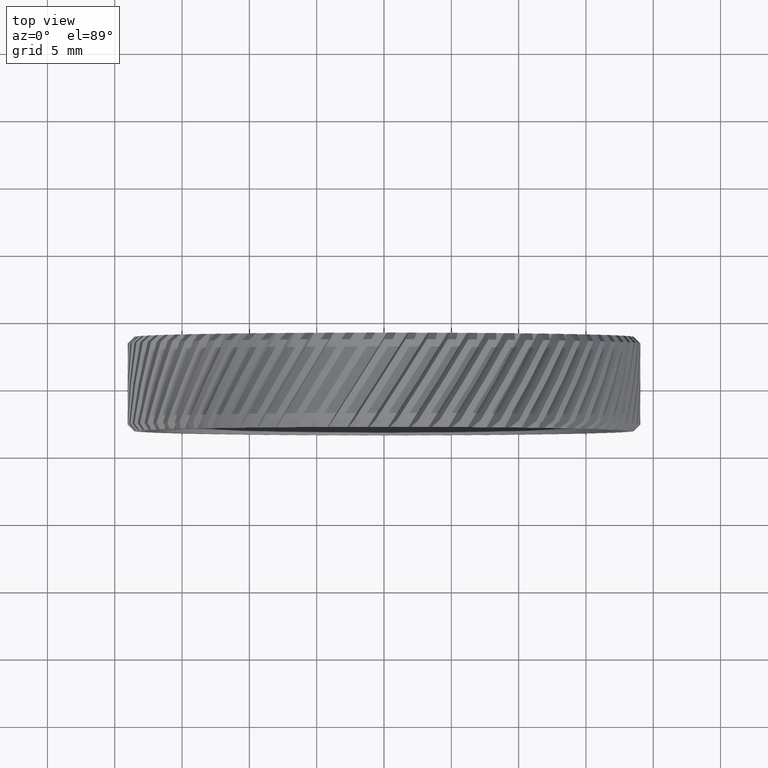
[diagram: clean part render]
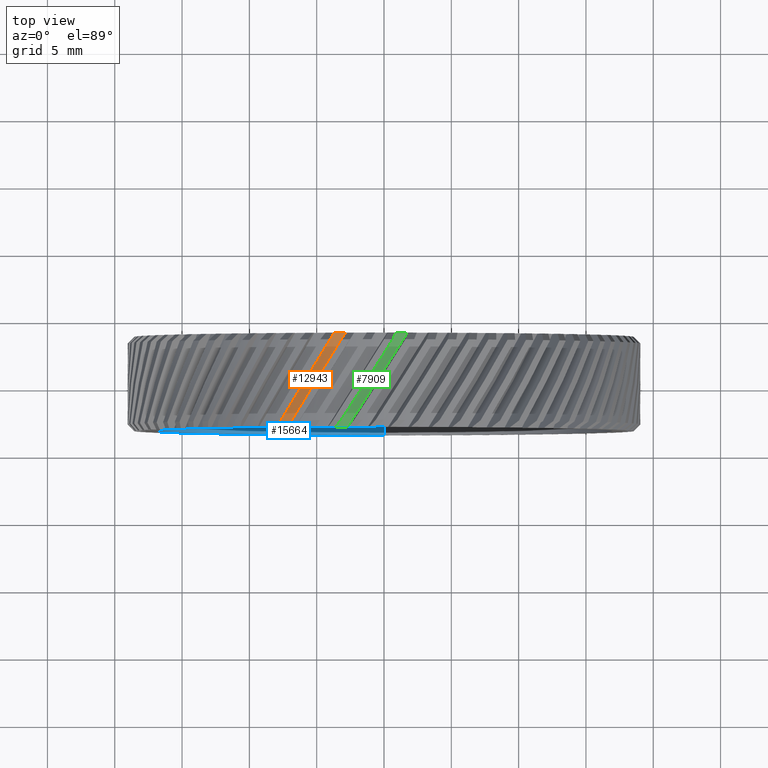
[diagram: same view with three faces highlighted in distinct colors, each labeled with its STEP entity id]
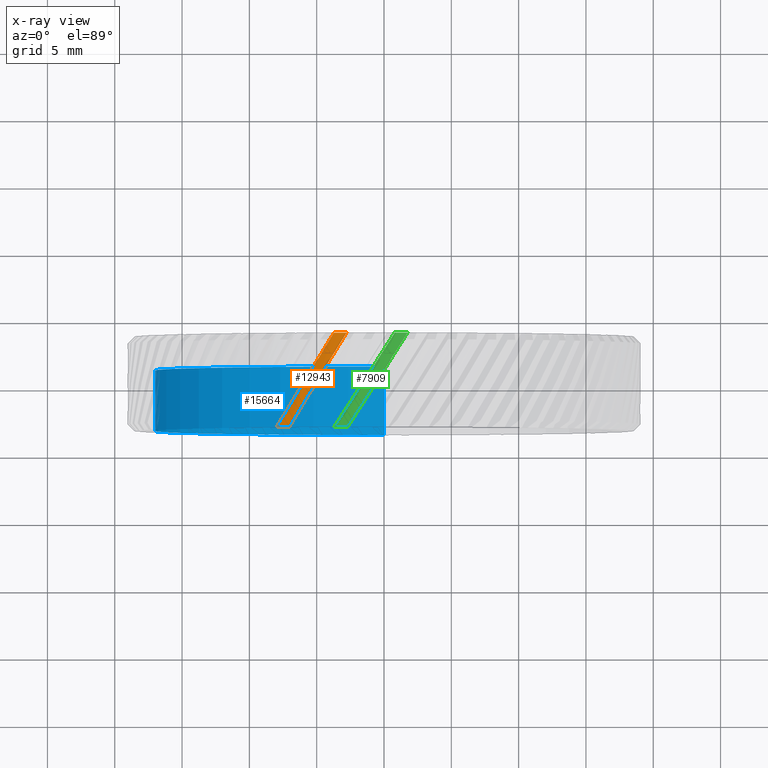
[diagram: x-ray of the same camera — body ghosted, the three highlighted faces saturated]
A machine part, top view with three faces highlighted in distinct colors.
The next image is the same camera in x-ray (body ghosted, the three faces saturated) — at least one of them is partly hidden behind the body in this view.
Their STEP definitions:

[orange] entity #12943 — the highlighted cylindrical surface (partial cylindrical patch) has radius 18.05 mm, axis along (0, 1, 0).
#293 = CARTESIAN_POINT ( 'NONE',  ( -7.975243422392667400, -13.33088448223191400, 16.19252890544224900 ) ) ;
#976 = EDGE_CURVE ( 'NONE', #13316, #4365, #5979, .T. ) ;
#1283 = CARTESIAN_POINT ( 'NONE',  ( -3.711440963924498100, -6.330884482231919500, 17.66430598612079500 ) ) ;
#2137 =( BOUNDED_CURVE ( )  B_SPLINE_CURVE ( 3, ( #4236, #2842, #15421, #293 ),
 .UNSPECIFIED., .F., .F. ) 
 B_SPLINE_CURVE_WITH_KNOTS ( ( 4, 4 ),
 ( 1.694117723285956100, 1.944671170535411400 ),
 .UNSPECIFIED. ) 
 CURVE ( )  GEOMETRIC_REPRESENTATION_ITEM ( )  RATIONAL_B_SPLINE_CURVE ( ( 1.000000000000000000, 0.9947754191975924900, 0.9947754191975924900, 1.000000000000000000 ) ) 
 REPRESENTATION_ITEM ( '' )  );
#2759 = CARTESIAN_POINT ( 'NONE',  ( -7.063796452055444600, -13.33088448223191600, 16.61039673469388200 ) ) ;
#2842 = CARTESIAN_POINT ( 'NONE',  ( -5.190597300275997300, -8.732488464476686500, 17.35352098142847400 ) ) ;
#3801 = ORIENTED_EDGE ( 'NONE', *, *, #13690, .T. ) ;
#4155 = CARTESIAN_POINT ( 'NONE',  ( 0.0000000000000000000, 46.02073106022621100, 0.0000000000000000000 ) ) ;
#4236 = CARTESIAN_POINT ( 'NONE',  ( -3.711440963924498100, -6.330884482231919500, 17.66430598612079500 ) ) ;
#4365 = VERTEX_POINT ( 'NONE', #4870 ) ;
#4834 = EDGE_CURVE ( 'NONE', #13316, #9555, #14451, .T. ) ;
#4870 = CARTESIAN_POINT ( 'NONE',  ( -7.975243422392667400, -13.33088448223191400, 16.19252890544224900 ) ) ;
#5405 = CARTESIAN_POINT ( 'NONE',  ( -5.689898128896326000, -11.06057732360097900, 17.19466562698022500 ) ) ;
#5528 = EDGE_LOOP ( 'NONE', ( #13489, #5746, #3801, #14037 ) ) ;
#5746 = ORIENTED_EDGE ( 'NONE', *, *, #8791, .F. ) ;
#5979 = CIRCLE ( 'NONE', #9664, 18.05000000000000800 ) ;
#6108 = CARTESIAN_POINT ( 'NONE',  ( 0.0000000000000000000, -6.330884482231915900, 0.0000000000000000000 ) ) ;
#7388 = FACE_OUTER_BOUND ( 'NONE', #5528, .T. ) ;
#8791 = EDGE_CURVE ( 'NONE', #13665, #9555, #12070, .T. ) ;
#9412 = DIRECTION ( 'NONE',  ( -0.08367784333230167400, 0.0000000000000000000, 0.9964928592495054800 ) ) ;
#9555 = VERTEX_POINT ( 'NONE', #15788 ) ;
#9664 = AXIS2_PLACEMENT_3D ( 'NONE', #10258, #14111, #12753 ) ;
#10258 = CARTESIAN_POINT ( 'NONE',  ( 0.0000000000000000000, -13.33088448223191600, 0.0000000000000000000 ) ) ;
#11080 = DIRECTION ( 'NONE',  ( 0.0000000000000000000, 1.000000000000000000, 0.0000000000000000000 ) ) ;
#11710 = CYLINDRICAL_SURFACE ( 'NONE', #15273, 18.05000000000000800 ) ;
#11770 = AXIS2_PLACEMENT_3D ( 'NONE', #6108, #15002, #13534 ) ;
#11883 = CARTESIAN_POINT ( 'NONE',  ( -7.063796452055444600, -13.33088448223191600, 16.61039673469388200 ) ) ;
#12070 = CIRCLE ( 'NONE', #11770, 18.05000000000000800 ) ;
#12753 = DIRECTION ( 'NONE',  ( -0.08367784333230167400, 0.0000000000000000000, 0.9964928592495054800 ) ) ;
#12895 = CARTESIAN_POINT ( 'NONE',  ( -4.254386344343810600, -8.715286743520588100, 17.60487613060467600 ) ) ;
#12943 = ADVANCED_FACE ( 'NONE', ( #7388 ), #11710, .T. ) ;
#13316 = VERTEX_POINT ( 'NONE', #11883 ) ;
#13489 = ORIENTED_EDGE ( 'NONE', *, *, #4834, .T. ) ;
#13534 = DIRECTION ( 'NONE',  ( 0.08367784333230167400, 0.0000000000000000000, -0.9964928592495054800 ) ) ;
#13665 = VERTEX_POINT ( 'NONE', #1283 ) ;
#13690 = EDGE_CURVE ( 'NONE', #13665, #4365, #2137, .T. ) ;
#14037 = ORIENTED_EDGE ( 'NONE', *, *, #976, .F. ) ;
#14111 = DIRECTION ( 'NONE',  ( -0.0000000000000000000, -1.000000000000000000, -0.0000000000000000000 ) ) ;
#14146 = CARTESIAN_POINT ( 'NONE',  ( -2.779217569926837800, -6.330884482231915900, 17.83475398481880300 ) ) ;
#14451 =( BOUNDED_CURVE ( )  B_SPLINE_CURVE ( 3, ( #2759, #5405, #12895, #14146 ),
 .UNSPECIFIED., .F., .F. ) 
 B_SPLINE_CURVE_WITH_KNOTS ( ( 4, 4 ),
 ( 4.394070920343705400, 4.641576534375216700 ),
 .UNSPECIFIED. ) 
 CURVE ( )  GEOMETRIC_REPRESENTATION_ITEM ( )  RATIONAL_B_SPLINE_CURVE ( ( 1.000000000000000000, 0.9949015926433100200, 0.9949015926433100200, 1.000000000000000000 ) ) 
 REPRESENTATION_ITEM ( '' )  );
#15002 = DIRECTION ( 'NONE',  ( -0.0000000000000000000, 1.000000000000000000, -0.0000000000000000000 ) ) ;
#15273 = AXIS2_PLACEMENT_3D ( 'NONE', #4155, #11080, #9412 ) ;
#15421 = CARTESIAN_POINT ( 'NONE',  ( -6.619329312273718500, -11.07807651209395200, 16.86035202011465700 ) ) ;
#15788 = CARTESIAN_POINT ( 'NONE',  ( -2.779217569926837800, -6.330884482231915900, 17.83475398481880300 ) ) ;

[blue] entity #15664 — the highlighted cylindrical surface (partial cylindrical patch) has radius 17 mm, axis along (-0, 1, -0).
#882 = DIRECTION ( 'NONE',  ( 0.0000000000000000000, 0.0000000000000000000, 1.000000000000000000 ) ) ;
#943 = ORIENTED_EDGE ( 'NONE', *, *, #10367, .F. ) ;
#960 = AXIS2_PLACEMENT_3D ( 'NONE', #7024, #8296, #882 ) ;
#1374 = LINE ( 'NONE', #4353, #13560 ) ;
#1409 = LINE ( 'NONE', #14016, #6321 ) ;
#1491 = DIRECTION ( 'NONE',  ( 0.0000000000000000000, 0.0000000000000000000, 1.000000000000000000 ) ) ;
#1683 = VERTEX_POINT ( 'NONE', #2905 ) ;
#1707 = VERTEX_POINT ( 'NONE', #11499 ) ;
#1984 = DIRECTION ( 'NONE',  ( -0.0000000000000000000, 1.000000000000000000, -0.0000000000000000000 ) ) ;
#2312 = CARTESIAN_POINT ( 'NONE',  ( 2.081899558550501500E-015, -13.33088448223191600, -17.00000000000000700 ) ) ;
#2905 = CARTESIAN_POINT ( 'NONE',  ( 0.0000000000000000000, -13.33088448223191600, 17.00000000000000700 ) ) ;
#2940 = EDGE_CURVE ( 'NONE', #1707, #9491, #8086, .T. ) ;
#2957 = CIRCLE ( 'NONE', #8535, 17.00000000000000700 ) ;
#3507 = DIRECTION ( 'NONE',  ( 0.0000000000000000000, 0.0000000000000000000, 1.000000000000000000 ) ) ;
#3898 = EDGE_CURVE ( 'NONE', #1683, #9491, #1374, .T. ) ;
#4353 = CARTESIAN_POINT ( 'NONE',  ( 0.0000000000000000000, 46.02073106022621100, 17.00000000000000700 ) ) ;
#4663 = DIRECTION ( 'NONE',  ( -0.0000000000000000000, 1.000000000000000000, -0.0000000000000000000 ) ) ;
#5330 = EDGE_LOOP ( 'NONE', ( #943, #12119, #13235, #13691 ) ) ;
#5594 = CARTESIAN_POINT ( 'NONE',  ( 0.0000000000000000000, 46.02073106022621100, 0.0000000000000000000 ) ) ;
#6321 = VECTOR ( 'NONE', #11397, 1000.000000000000000 ) ;
#7024 = CARTESIAN_POINT ( 'NONE',  ( 0.0000000000000000000, -8.830884482231917700, 0.0000000000000000000 ) ) ;
#7920 = FACE_OUTER_BOUND ( 'NONE', #5330, .T. ) ;
#8086 = CIRCLE ( 'NONE', #960, 17.00000000000000700 ) ;
#8296 = DIRECTION ( 'NONE',  ( -0.0000000000000000000, 1.000000000000000000, -0.0000000000000000000 ) ) ;
#8535 = AXIS2_PLACEMENT_3D ( 'NONE', #15415, #12919, #1491 ) ;
#9235 = AXIS2_PLACEMENT_3D ( 'NONE', #5594, #4663, #3507 ) ;
#9491 = VERTEX_POINT ( 'NONE', #13067 ) ;
#10353 = EDGE_CURVE ( 'NONE', #14438, #1707, #1409, .T. ) ;
#10367 = EDGE_CURVE ( 'NONE', #14438, #1683, #2957, .T. ) ;
#11397 = DIRECTION ( 'NONE',  ( -0.0000000000000000000, 1.000000000000000000, -0.0000000000000000000 ) ) ;
#11499 = CARTESIAN_POINT ( 'NONE',  ( 2.081899558550501500E-015, -8.830884482231917700, -17.00000000000000700 ) ) ;
#12119 = ORIENTED_EDGE ( 'NONE', *, *, #10353, .T. ) ;
#12919 = DIRECTION ( 'NONE',  ( -0.0000000000000000000, 1.000000000000000000, -0.0000000000000000000 ) ) ;
#13067 = CARTESIAN_POINT ( 'NONE',  ( 0.0000000000000000000, -8.830884482231917700, 17.00000000000000700 ) ) ;
#13235 = ORIENTED_EDGE ( 'NONE', *, *, #2940, .T. ) ;
#13560 = VECTOR ( 'NONE', #1984, 1000.000000000000000 ) ;
#13635 = CYLINDRICAL_SURFACE ( 'NONE', #9235, 17.00000000000000700 ) ;
#13691 = ORIENTED_EDGE ( 'NONE', *, *, #3898, .F. ) ;
#14016 = CARTESIAN_POINT ( 'NONE',  ( 2.081899558550501500E-015, 46.02073106022621100, -17.00000000000000700 ) ) ;
#14438 = VERTEX_POINT ( 'NONE', #2312 ) ;
#15415 = CARTESIAN_POINT ( 'NONE',  ( 0.0000000000000000000, -13.33088448223191600, 0.0000000000000000000 ) ) ;
#15664 = ADVANCED_FACE ( 'NONE', ( #7920 ), #13635, .F. ) ;

[green] entity #7909 — the highlighted cylindrical surface (partial cylindrical patch) has radius 18.05 mm, axis along (0, 1, 0).
#1286 = CYLINDRICAL_SURFACE ( 'NONE', #14605, 18.05000000000000800 ) ;
#1802 = AXIS2_PLACEMENT_3D ( 'NONE', #4244, #3075, #4184 ) ;
#2510 = CIRCLE ( 'NONE', #10346, 18.05000000000000800 ) ;
#2564 = CARTESIAN_POINT ( 'NONE',  ( 1.743419616753320900, -6.330884482231915900, 17.96560569643894900 ) ) ;
#2829 = DIRECTION ( 'NONE',  ( 0.1667687467161026200, 0.0000000000000000000, 0.9859960370705047600 ) ) ;
#3075 = DIRECTION ( 'NONE',  ( -0.0000000000000000000, 1.000000000000000000, -0.0000000000000000000 ) ) ;
#3211 = EDGE_CURVE ( 'NONE', #5324, #14087, #14300, .T. ) ;
#3318 = CARTESIAN_POINT ( 'NONE',  ( -2.218371868391692600, -11.07807651209396800, 17.97681331716049500 ) ) ;
#3840 = FACE_OUTER_BOUND ( 'NONE', #10040, .T. ) ;
#4055 = CARTESIAN_POINT ( 'NONE',  ( 1.743419616753320900, -6.330884482231915900, 17.96560569643894900 ) ) ;
#4184 = DIRECTION ( 'NONE',  ( -0.1667687467161026200, 0.0000000000000000000, -0.9859960370705047600 ) ) ;
#4244 = CARTESIAN_POINT ( 'NONE',  ( 0.0000000000000000000, -6.330884482231915900, 0.0000000000000000000 ) ) ;
#4771 = EDGE_CURVE ( 'NONE', #5324, #15176, #2510, .T. ) ;
#4844 = ORIENTED_EDGE ( 'NONE', *, *, #4771, .F. ) ;
#5271 = CARTESIAN_POINT ( 'NONE',  ( -2.711036607386817700, -13.33088448223191600, 17.84524531950762600 ) ) ;
#5324 = VERTEX_POINT ( 'NONE', #15109 ) ;
#5804 = CARTESIAN_POINT ( 'NONE',  ( -3.697768298423566200, -13.33088448223191400, 17.66717322072701900 ) ) ;
#6062 = ORIENTED_EDGE ( 'NONE', *, *, #11444, .F. ) ;
#6472 = CARTESIAN_POINT ( 'NONE',  ( -1.235000061575410000, -11.06057732360097900, 18.06948371118505000 ) ) ;
#7909 = ADVANCED_FACE ( 'NONE', ( #3840 ), #1286, .T. ) ;
#8182 = ORIENTED_EDGE ( 'NONE', *, *, #3211, .T. ) ;
#8472 = ORIENTED_EDGE ( 'NONE', *, *, #16152, .T. ) ;
#8999 = CARTESIAN_POINT ( 'NONE',  ( 0.2574276844040707100, -8.715286743520588100, 18.10980943378962100 ) ) ;
#9662 = CIRCLE ( 'NONE', #1802, 18.05000000000000800 ) ;
#10031 = DIRECTION ( 'NONE',  ( -0.0000000000000000000, -1.000000000000000000, -0.0000000000000000000 ) ) ;
#10040 = EDGE_LOOP ( 'NONE', ( #8182, #6062, #8472, #4844 ) ) ;
#10299 = VERTEX_POINT ( 'NONE', #16267 ) ;
#10346 = AXIS2_PLACEMENT_3D ( 'NONE', #11195, #10031, #15127 ) ;
#11195 = CARTESIAN_POINT ( 'NONE',  ( 0.0000000000000000000, -13.33088448223191600, 0.0000000000000000000 ) ) ;
#11444 = EDGE_CURVE ( 'NONE', #10299, #14087, #9662, .T. ) ;
#11599 = CARTESIAN_POINT ( 'NONE',  ( 0.0000000000000000000, 46.02073106022621100, 0.0000000000000000000 ) ) ;
#13326 = CARTESIAN_POINT ( 'NONE',  ( 0.7980950413533208800, -6.330884482231919500, 18.03234716571770600 ) ) ;
#13379 = CARTESIAN_POINT ( 'NONE',  ( -0.7118799664629267300, -8.732488464476697100, 18.09917726582784100 ) ) ;
#14087 = VERTEX_POINT ( 'NONE', #4055 ) ;
#14300 =( BOUNDED_CURVE ( )  B_SPLINE_CURVE ( 3, ( #5271, #6472, #8999, #2564 ),
 .UNSPECIFIED., .F., .F. ) 
 B_SPLINE_CURVE_WITH_KNOTS ( ( 4, 4 ),
 ( 4.394070920343705400, 4.641576534375216700 ),
 .UNSPECIFIED. ) 
 CURVE ( )  GEOMETRIC_REPRESENTATION_ITEM ( )  RATIONAL_B_SPLINE_CURVE ( ( 1.000000000000000000, 0.9949015926433100200, 0.9949015926433100200, 1.000000000000000000 ) ) 
 REPRESENTATION_ITEM ( '' )  );
#14605 = AXIS2_PLACEMENT_3D ( 'NONE', #11599, #15363, #2829 ) ;
#14916 =( BOUNDED_CURVE ( )  B_SPLINE_CURVE ( 3, ( #13326, #13379, #3318, #5804 ),
 .UNSPECIFIED., .F., .F. ) 
 B_SPLINE_CURVE_WITH_KNOTS ( ( 4, 4 ),
 ( 1.694117723285956100, 1.944671170535412300 ),
 .UNSPECIFIED. ) 
 CURVE ( )  GEOMETRIC_REPRESENTATION_ITEM ( )  RATIONAL_B_SPLINE_CURVE ( ( 1.000000000000000000, 0.9947754191975923800, 0.9947754191975923800, 1.000000000000000000 ) ) 
 REPRESENTATION_ITEM ( '' )  );
#15109 = CARTESIAN_POINT ( 'NONE',  ( -2.711036607386817700, -13.33088448223191600, 17.84524531950762600 ) ) ;
#15127 = DIRECTION ( 'NONE',  ( 0.1667687467161026200, 0.0000000000000000000, 0.9859960370705047600 ) ) ;
#15176 = VERTEX_POINT ( 'NONE', #15766 ) ;
#15363 = DIRECTION ( 'NONE',  ( 0.0000000000000000000, 1.000000000000000000, 0.0000000000000000000 ) ) ;
#15766 = CARTESIAN_POINT ( 'NONE',  ( -3.697768298423566200, -13.33088448223191400, 17.66717322072701900 ) ) ;
#16152 = EDGE_CURVE ( 'NONE', #10299, #15176, #14916, .T. ) ;
#16267 = CARTESIAN_POINT ( 'NONE',  ( 0.7980950413533208800, -6.330884482231919500, 18.03234716571770600 ) ) ;